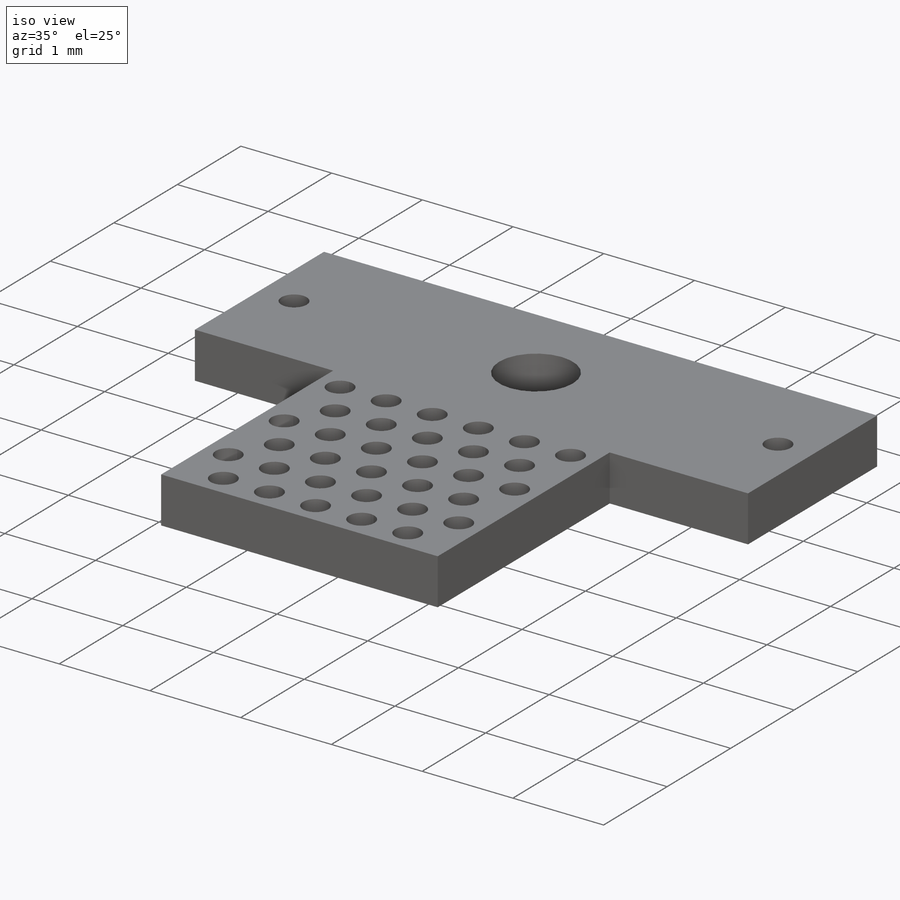
[diagram: iso view]
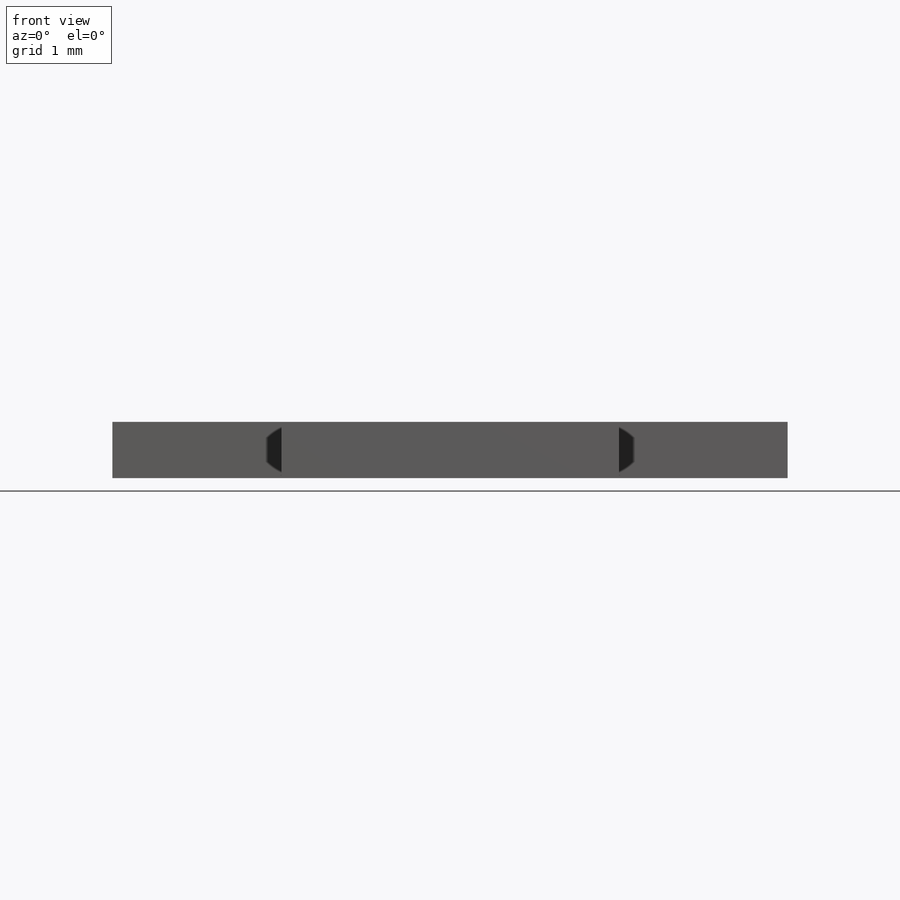
[diagram: front view]
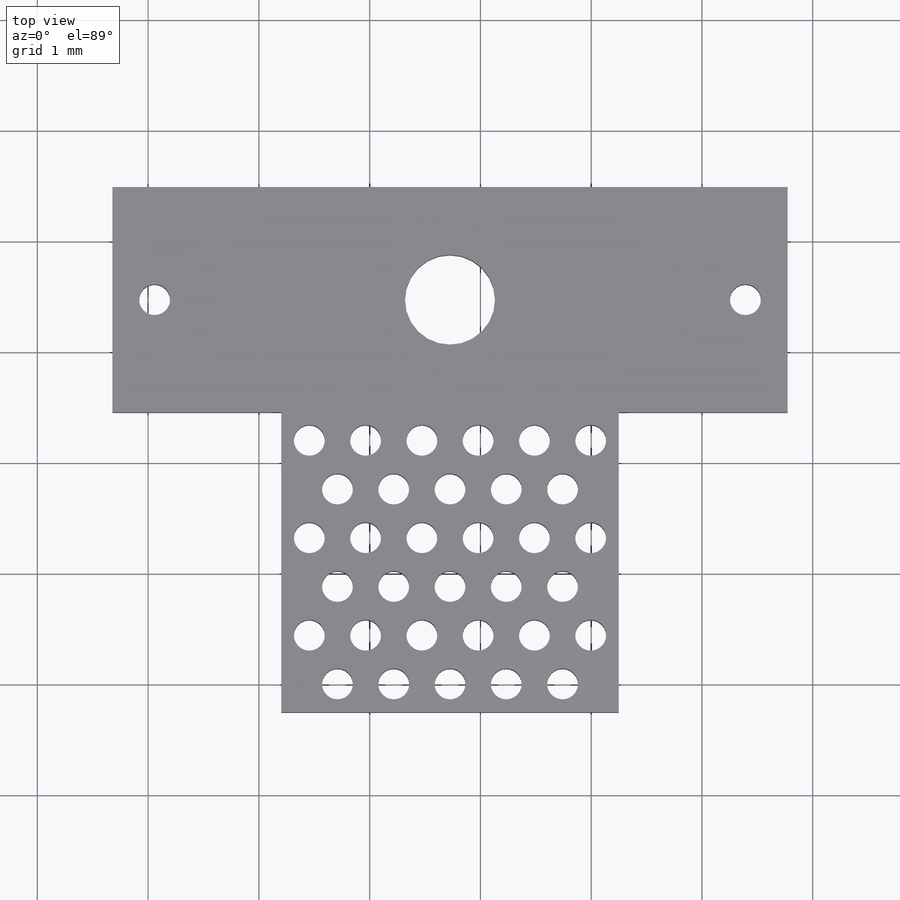
[diagram: top view]
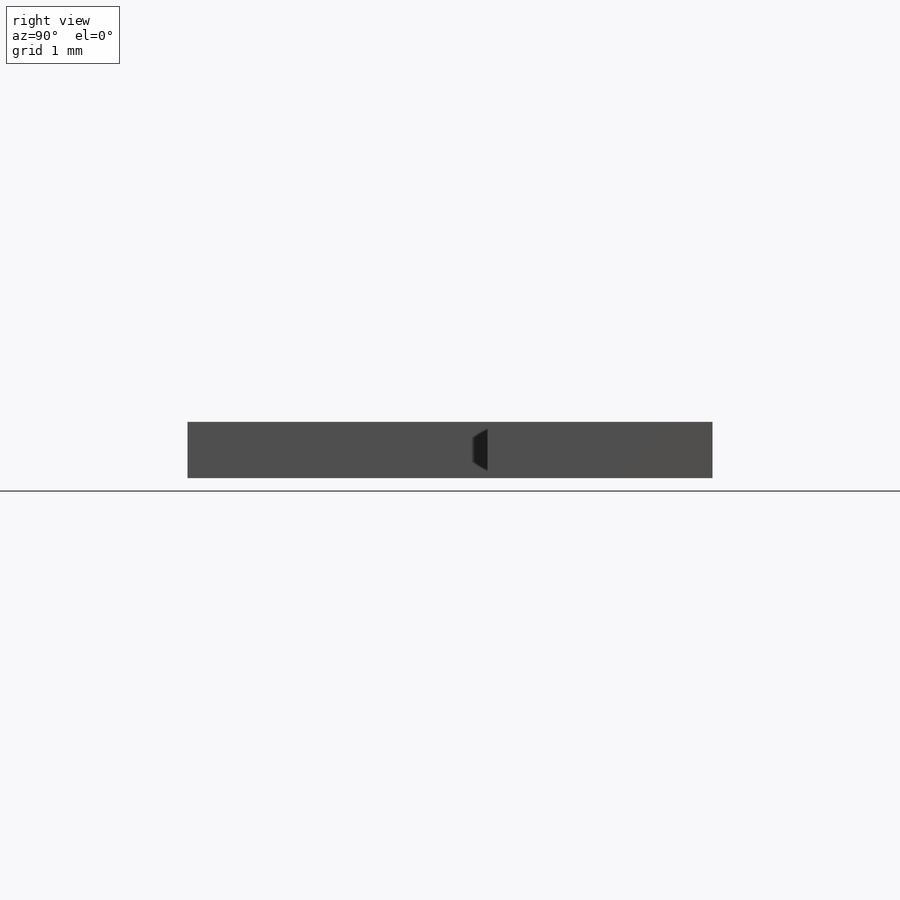
[diagram: right view]
SOLIDWORKS PART (.sldprt)
format: sldprt  version: not decoded by parser v0  size: 335,872 bytes
history: native  units: mm
features: sketch x13, cut_extrude x10, extrude x2, material x1 + 1 further entry (+11 scaffold rows collapsed)
feature tree (38):
  scaffold x11  (default folders/planes/origin — collapsed)
  material  "Material <not specified>"
  "Annotations"  RD1=3.048mm RD2=2.707705mm RD3=6.096mm
  sketch  "elec_row1"  dims[D1=~1.516371mm D2=1.397mm]
  sketch  "elec_row2"  dims[D1=~1.516371mm D2=0.508mm D3=0.508mm D4=0.508mm]
  sketch  "elec_row3"  dims[D1=~1.516371mm D2=0.508mm D3=0.508mm]
  sketch  "elec_row4"  dims[D1=~1.516371mm D2=0.508mm D3=0.508mm]
  sketch  "elec_row5"  dims[c1.D1=~1.516371mm c1.D2=0.508mm c1.D3=0.508mm c2.D2=0.508mm c2.D3=0.508mm]
  sketch  "elec_misc1"  dims[D1=0.508mm D2=0.508mm D3=0.508mm]
  sketch  "elec_misc2"  dims[D1=0.508mm D2=0.508mm]
  sketch  "elec_row6"  dims[D1=0.508mm D3=0.508mm D2=6.0]
  sketch  "elec_bounding"  dims[c1.D1=~3.775648mm c1.D2=~2.297473mm c2.D1=0.254mm c2.D2=0.254mm c2.D3=0.254mm c2.D4=0.254mm c2.D5=0.254mm]
  sketch  "shuttle"  dims[D1=2.032mm D2=1.524mm D3=1.524mm]
  sketch  "drive_screw"  dims[D1=1.524mm D2=1.524mm D3=1.016mm]
  sketch  "guide_holes"  dims[D1=0.381mm D2=2.0]
  extrude  "shuttle_extr"  Depth=0.508mm
  extrude  "elec_bounding_extr"  Depth=0.508mm
  cut_extrude  "elec_row1_extr"  Depth=0.508mm
  cut_extrude  "elec_row2_extr"  Depth=0.508mm
  cut_extrude  "elec_row3_extr"  Depth=0.508mm
  cut_extrude  "elec_row4_extr"  Depth=0.508mm
  cut_extrude  "elec_row5_extr"  Depth=0.508mm
  cut_extrude  "elec_misc1_extr"  Depth=0.508mm
  cut_extrude  "elec_misc2_extr"  Depth=0.508mm
  cut_extrude  "elec_row6_extr"  Depth=0.508mm
  cut_extrude  "drive_screw_extr"  Depth=0.508mm
  cut_extrude  "guide_holes_extr"  Depth=0.508mm
  sketch  "Sketch18"  dims[c1.D1=~0.148709mm c2.D1=8.0 c2.D2=4.0]
decode coverage: 25 of 25 modeling features carry decoded parameters; 1 rows unclassified (native names shown)
note: ~ marks probable driven/reference dimensions
note: suppression state not decoded; provenance and decode notes live in map.json
